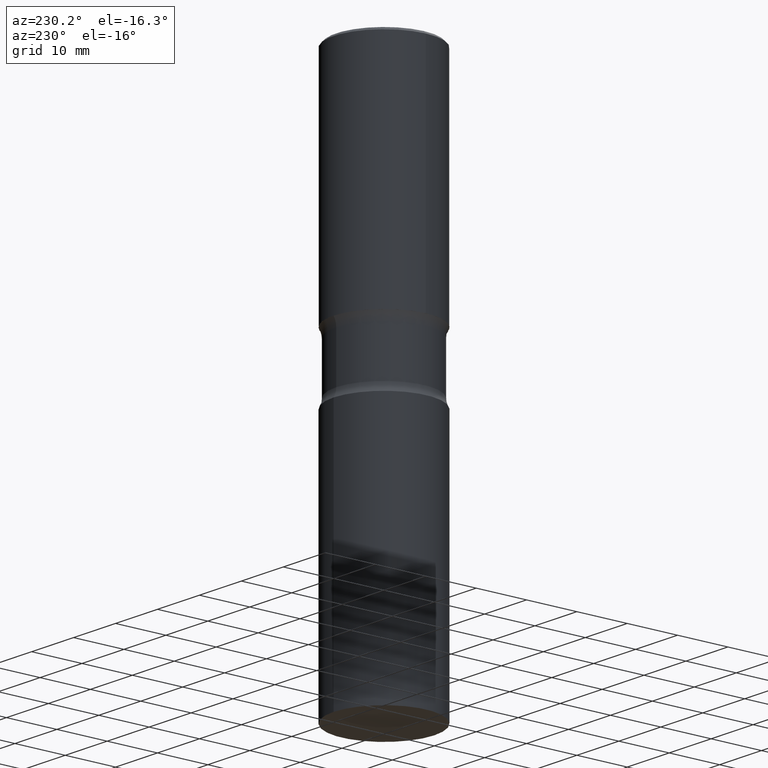
[diagram: clean part render]
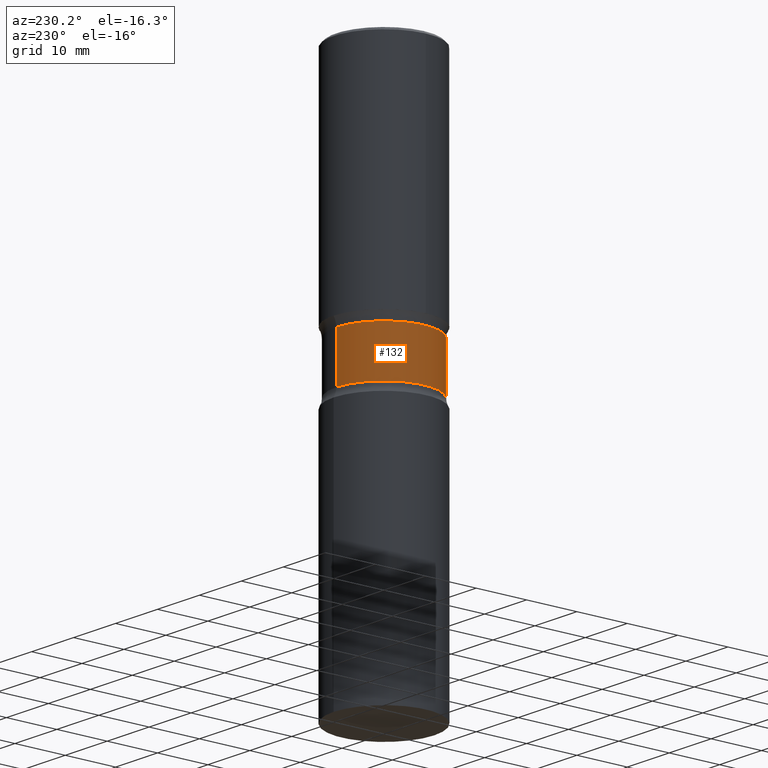
[diagram: same view with one face highlighted and labeled with its STEP entity id]
A machine part, auxiliary view. The second image highlights one B-rep face of the part: STEP entity #132.
In plain terms, the highlighted cylindrical surface (partial cylindrical patch) has radius 9.4869 mm, axis along (0, -0, -1).
Its self-contained STEP definition (entity closure, byte-faithful):
#12 = DIRECTION ( 'NONE',  ( 6.982962677686265922E-15, 1.000000000000000000, -3.657092360996335267E-15 ) ) ;
#16 = CARTESIAN_POINT ( 'NONE',  ( 5.419952928499140621E-29, -7.731566087902375701E-15, -2.215368069159901143 ) ) ;
#37 = ORIENTED_EDGE ( 'NONE', *, *, #252, .T. ) ;
#38 = DIRECTION ( 'NONE',  ( 2.422342619709238593E-29, -3.524599354137423040E-15, -1.000000000000000000 ) ) ;
#58 = EDGE_CURVE ( 'NONE', #419, #276, #338, .T. ) ;
#68 = ORIENTED_EDGE ( 'NONE', *, *, #401, .F. ) ;
#98 = LINE ( 'NONE', #207, #405 ) ;
#103 = CARTESIAN_POINT ( 'NONE',  ( -2.631687031945114564E-15, -0.3735000000000064380, -1.839831930840096996 ) ) ;
#118 = ORIENTED_EDGE ( 'NONE', *, *, #58, .T. ) ;
#129 = VECTOR ( 'NONE', #38, 39.37007874015748143 ) ;
#132 = ADVANCED_FACE ( 'NONE', ( #452 ), #136, .T. ) ;
#135 = EDGE_LOOP ( 'NONE', ( #68, #118, #37, #502 ) ) ;
#136 = CYLINDRICAL_SURFACE ( 'NONE', #490, 0.3735000000000000542 ) ;
#137 = DIRECTION ( 'NONE',  ( 2.422342619709238593E-29, -3.524599354137422645E-15, -1.000000000000000000 ) ) ;
#139 = CIRCLE ( 'NONE', #427, 0.3735000000000001097 ) ;
#142 = DIRECTION ( 'NONE',  ( 2.422342619709238593E-29, -3.524599354137422645E-15, -1.000000000000000000 ) ) ;
#203 = DIRECTION ( 'NONE',  ( 6.982962677686265922E-15, 1.000000000000000000, -3.657092360996336056E-15 ) ) ;
#207 = CARTESIAN_POINT ( 'NONE',  ( -2.562396002167563676E-15, -0.3735000000000149312, -4.251999999999998892 ) ) ;
#232 = CARTESIAN_POINT ( 'NONE',  ( 2.608136560115865171E-15, 0.3734999999999935594, -1.839831930840099661 ) ) ;
#249 = CARTESIAN_POINT ( 'NONE',  ( 1.035337325523382990E-28, -1.490987767595703701E-14, -4.251999999999999780 ) ) ;
#252 = EDGE_CURVE ( 'NONE', #276, #476, #261, .T. ) ;
#259 = CARTESIAN_POINT ( 'NONE',  ( 2.608136560115875426E-15, 0.3734999999999923936, -2.215368069159902475 ) ) ;
#261 = LINE ( 'NONE', #395, #129 ) ;
#276 = VERTEX_POINT ( 'NONE', #232 ) ;
#331 = DIRECTION ( 'NONE',  ( 2.422342619709238593E-29, -3.524599354137423040E-15, -1.000000000000000000 ) ) ;
#338 = CIRCLE ( 'NONE', #356, 0.3734999999999999987 ) ;
#356 = AXIS2_PLACEMENT_3D ( 'NONE', #455, #142, #203 ) ;
#375 = VERTEX_POINT ( 'NONE', #411 ) ;
#380 = EDGE_CURVE ( 'NONE', #375, #476, #139, .T. ) ;
#395 = CARTESIAN_POINT ( 'NONE',  ( 2.608136560115923941E-15, 0.3734999999999851772, -4.252000000000000668 ) ) ;
#401 = EDGE_CURVE ( 'NONE', #419, #375, #98, .T. ) ;
#405 = VECTOR ( 'NONE', #331, 39.37007874015748143 ) ;
#411 = CARTESIAN_POINT ( 'NONE',  ( -2.631687031945105492E-15, -0.3735000000000078257, -2.215368069159899811 ) ) ;
#419 = VERTEX_POINT ( 'NONE', #103 ) ;
#427 = AXIS2_PLACEMENT_3D ( 'NONE', #16, #137, #12 ) ;
#450 = DIRECTION ( 'NONE',  ( 6.982962677686265922E-15, 1.000000000000000000, -2.925673888797068529E-15 ) ) ;
#452 = FACE_OUTER_BOUND ( 'NONE', #135, .T. ) ;
#455 = CARTESIAN_POINT ( 'NONE',  ( 4.510275735406058081E-29, -6.407951657325135987E-15, -1.839831930840098329 ) ) ;
#476 = VERTEX_POINT ( 'NONE', #259 ) ;
#490 = AXIS2_PLACEMENT_3D ( 'NONE', #249, #496, #450 ) ;
#496 = DIRECTION ( 'NONE',  ( 2.422342619709238593E-29, -3.524599354137422645E-15, -1.000000000000000000 ) ) ;
#502 = ORIENTED_EDGE ( 'NONE', *, *, #380, .F. ) ;